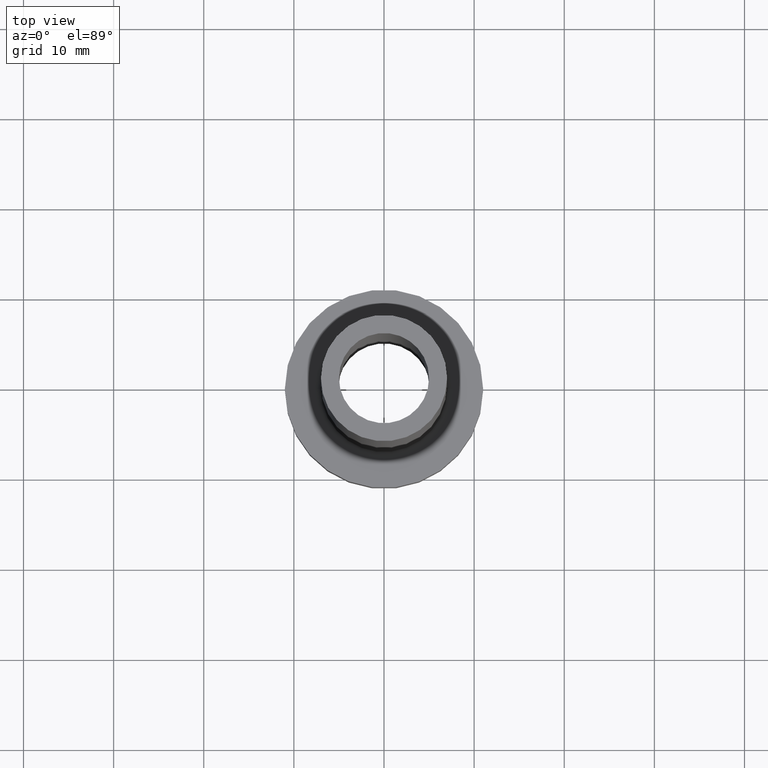
[diagram: clean part render]
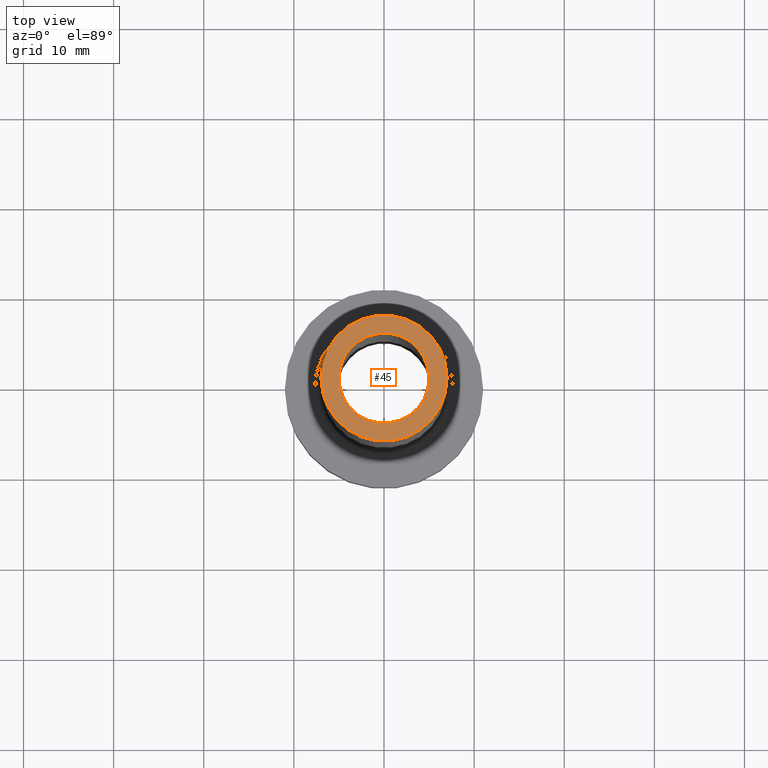
[diagram: same view with one face highlighted and labeled with its STEP entity id]
A machine part, top view. The second image highlights one B-rep face of the part: STEP entity #45.
In plain terms, the highlighted planar face has unit normal (0, 0, 1).
Its self-contained STEP definition (entity closure, byte-faithful):
#7 = CARTESIAN_POINT ( 'NONE',  ( 0.000000000000000000, 0.000000000000000000, 75.00000000000001421 ) ) ;
#10 = EDGE_CURVE ( 'NONE', #274, #378, #61, .T. ) ;
#34 = ORIENTED_EDGE ( 'NONE', *, *, #406, .F. ) ;
#45 = ADVANCED_FACE ( 'NONE', ( #358, #384 ), #71, .T. ) ;
#61 = CIRCLE ( 'NONE', #148, 5.000000000000000000 ) ;
#63 = AXIS2_PLACEMENT_3D ( 'NONE', #86, #394, #255 ) ;
#67 = ORIENTED_EDGE ( 'NONE', *, *, #374, .T. ) ;
#71 = PLANE ( 'NONE',  #83 ) ;
#74 = CIRCLE ( 'NONE', #63, 5.000000000000000000 ) ;
#83 = AXIS2_PLACEMENT_3D ( 'NONE', #7, #217, #395 ) ;
#86 = CARTESIAN_POINT ( 'NONE',  ( 0.000000000000000000, 0.000000000000000000, 75.00000000000001421 ) ) ;
#103 = CARTESIAN_POINT ( 'NONE',  ( 5.000000000000000000, 6.123233995736765296E-16, 75.00000000000001421 ) ) ;
#135 = AXIS2_PLACEMENT_3D ( 'NONE', #432, #330, #256 ) ;
#145 = CARTESIAN_POINT ( 'NONE',  ( 7.000000000000000888, 8.572527594031474176E-16, 75.00000000000001421 ) ) ;
#146 = CARTESIAN_POINT ( 'NONE',  ( -5.000000000000000000, 0.000000000000000000, 75.00000000000001421 ) ) ;
#148 = AXIS2_PLACEMENT_3D ( 'NONE', #169, #224, #285 ) ;
#169 = CARTESIAN_POINT ( 'NONE',  ( 0.000000000000000000, 0.000000000000000000, 75.00000000000001421 ) ) ;
#180 = DIRECTION ( 'NONE',  ( 1.000000000000000000, 0.000000000000000000, 0.000000000000000000 ) ) ;
#182 = CIRCLE ( 'NONE', #135, 7.000000000000000888 ) ;
#199 = EDGE_LOOP ( 'NONE', ( #355, #67 ) ) ;
#217 = DIRECTION ( 'NONE',  ( 0.000000000000000000, 0.000000000000000000, 1.000000000000000000 ) ) ;
#224 = DIRECTION ( 'NONE',  ( 0.000000000000000000, 0.000000000000000000, 1.000000000000000000 ) ) ;
#235 = EDGE_LOOP ( 'NONE', ( #34, #448 ) ) ;
#249 = CIRCLE ( 'NONE', #343, 7.000000000000000888 ) ;
#252 = DIRECTION ( 'NONE',  ( 0.000000000000000000, 0.000000000000000000, 1.000000000000000000 ) ) ;
#255 = DIRECTION ( 'NONE',  ( 1.000000000000000000, 0.000000000000000000, 0.000000000000000000 ) ) ;
#256 = DIRECTION ( 'NONE',  ( 1.000000000000000000, 0.000000000000000000, 0.000000000000000000 ) ) ;
#274 = VERTEX_POINT ( 'NONE', #103 ) ;
#285 = DIRECTION ( 'NONE',  ( 1.000000000000000000, 0.000000000000000000, 0.000000000000000000 ) ) ;
#330 = DIRECTION ( 'NONE',  ( 0.000000000000000000, 0.000000000000000000, 1.000000000000000000 ) ) ;
#343 = AXIS2_PLACEMENT_3D ( 'NONE', #401, #252, #180 ) ;
#353 = VERTEX_POINT ( 'NONE', #145 ) ;
#355 = ORIENTED_EDGE ( 'NONE', *, *, #400, .T. ) ;
#358 = FACE_BOUND ( 'NONE', #235, .T. ) ;
#363 = CARTESIAN_POINT ( 'NONE',  ( -7.000000000000000888, 0.000000000000000000, 75.00000000000001421 ) ) ;
#374 = EDGE_CURVE ( 'NONE', #353, #443, #249, .T. ) ;
#378 = VERTEX_POINT ( 'NONE', #146 ) ;
#384 = FACE_OUTER_BOUND ( 'NONE', #199, .T. ) ;
#394 = DIRECTION ( 'NONE',  ( 0.000000000000000000, 0.000000000000000000, 1.000000000000000000 ) ) ;
#395 = DIRECTION ( 'NONE',  ( 1.000000000000000000, 0.000000000000000000, -0.000000000000000000 ) ) ;
#400 = EDGE_CURVE ( 'NONE', #443, #353, #182, .T. ) ;
#401 = CARTESIAN_POINT ( 'NONE',  ( 0.000000000000000000, 0.000000000000000000, 75.00000000000001421 ) ) ;
#406 = EDGE_CURVE ( 'NONE', #378, #274, #74, .T. ) ;
#432 = CARTESIAN_POINT ( 'NONE',  ( 0.000000000000000000, 0.000000000000000000, 75.00000000000001421 ) ) ;
#443 = VERTEX_POINT ( 'NONE', #363 ) ;
#448 = ORIENTED_EDGE ( 'NONE', *, *, #10, .F. ) ;